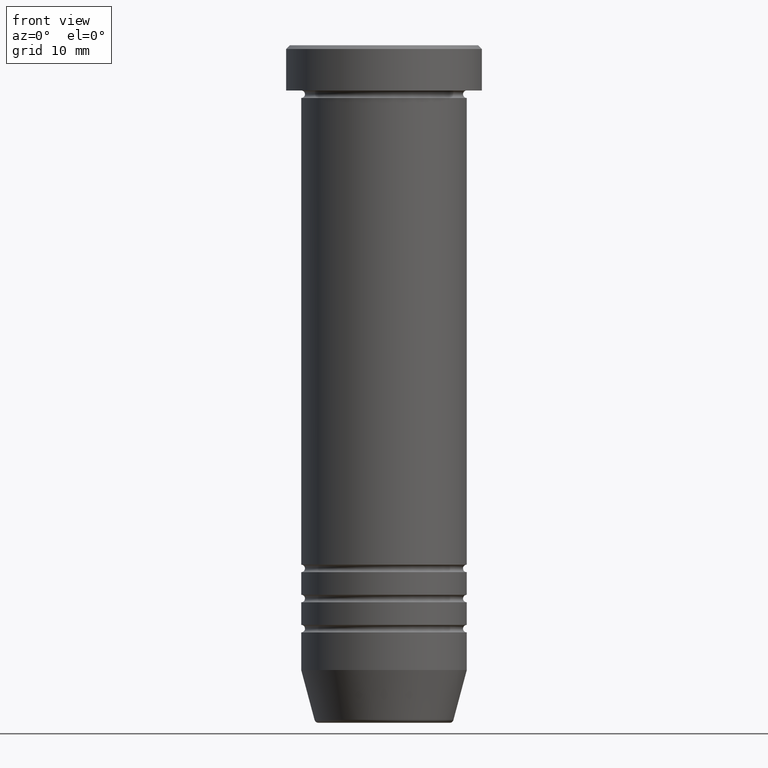
[diagram: clean part render]
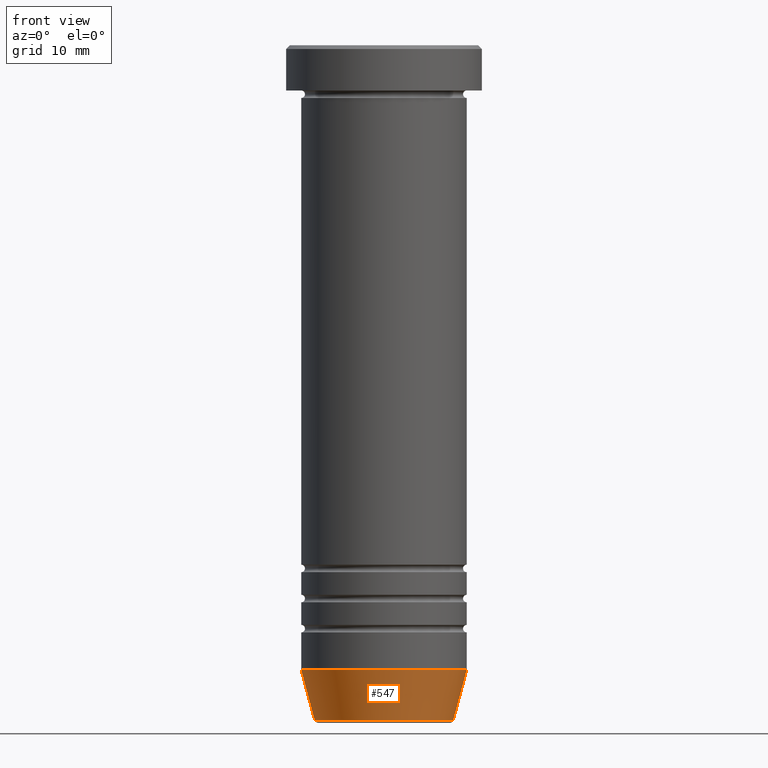
[diagram: same view with one face highlighted and labeled with its STEP entity id]
A machine part, front view. The second image highlights one B-rep face of the part: STEP entity #547.
In plain terms, the highlighted conical surface has half-angle 15 deg.
Its self-contained STEP definition (entity closure, byte-faithful):
#86 = ORIENTED_EDGE ( 'NONE', *, *, #178, .T. ) ;
#130 = EDGE_CURVE ( 'NONE', #850, #1037, #1041, .T. ) ;
#178 = EDGE_CURVE ( 'NONE', #975, #850, #386, .T. ) ;
#197 = DIRECTION ( 'NONE',  ( -0.2588190451025213501, 3.169619151431772337E-17, 0.9659258262890680902 ) ) ;
#199 = DIRECTION ( 'NONE',  ( 1.000000000000000000, 0.000000000000000000, 0.000000000000000000 ) ) ;
#222 = CARTESIAN_POINT ( 'NONE',  ( -11.00000000000000000, 1.347111479062088405E-15, -82.99999999999998579 ) ) ;
#287 = CARTESIAN_POINT ( 'NONE',  ( 0.000000000000000000, 0.000000000000000000, -89.62940952255124216 ) ) ;
#298 = DIRECTION ( 'NONE',  ( -0.000000000000000000, -0.000000000000000000, 1.000000000000000000 ) ) ;
#368 = CARTESIAN_POINT ( 'NONE',  ( 0.000000000000000000, 0.000000000000000000, -82.99999999999998579 ) ) ;
#371 = CARTESIAN_POINT ( 'NONE',  ( 9.124355652982133691, 0.000000000000000000, -90.00000000000000000 ) ) ;
#374 = EDGE_CURVE ( 'NONE', #509, #1037, #536, .T. ) ;
#386 = CIRCLE ( 'NONE', #670, 9.223655072137189492 ) ;
#429 = EDGE_LOOP ( 'NONE', ( #859, #86, #737, #832 ) ) ;
#509 = VERTEX_POINT ( 'NONE', #222 ) ;
#514 = CARTESIAN_POINT ( 'NONE',  ( 9.223655072137189492, 0.000000000000000000, -89.62940952255124216 ) ) ;
#520 = CONICAL_SURFACE ( 'NONE', #621, 9.124355652982133691, 0.2617993877991500740 ) ;
#536 = CIRCLE ( 'NONE', #1030, 11.00000000000000000 ) ;
#540 = DIRECTION ( 'NONE',  ( -0.000000000000000000, -0.000000000000000000, 1.000000000000000000 ) ) ;
#547 = ADVANCED_FACE ( 'NONE', ( #1043 ), #520, .T. ) ;
#571 = VECTOR ( 'NONE', #197, 1000.000000000000000 ) ;
#613 = DIRECTION ( 'NONE',  ( -1.000000000000000000, 0.000000000000000000, 0.000000000000000000 ) ) ;
#621 = AXIS2_PLACEMENT_3D ( 'NONE', #1050, #298, #889 ) ;
#670 = AXIS2_PLACEMENT_3D ( 'NONE', #287, #540, #613 ) ;
#737 = ORIENTED_EDGE ( 'NONE', *, *, #130, .T. ) ;
#800 = CARTESIAN_POINT ( 'NONE',  ( 11.00000000000000000, 0.000000000000000000, -82.99999999999998579 ) ) ;
#832 = ORIENTED_EDGE ( 'NONE', *, *, #374, .F. ) ;
#850 = VERTEX_POINT ( 'NONE', #514 ) ;
#859 = ORIENTED_EDGE ( 'NONE', *, *, #914, .F. ) ;
#889 = DIRECTION ( 'NONE',  ( 1.000000000000000000, 0.000000000000000000, 0.000000000000000000 ) ) ;
#914 = EDGE_CURVE ( 'NONE', #975, #509, #1016, .T. ) ;
#939 = DIRECTION ( 'NONE',  ( -0.000000000000000000, -0.000000000000000000, 1.000000000000000000 ) ) ;
#941 = CARTESIAN_POINT ( 'NONE',  ( -9.124355652982133691, 1.117411294470662806E-15, -90.00000000000000000 ) ) ;
#953 = DIRECTION ( 'NONE',  ( 0.2588190451025213501, 0.000000000000000000, 0.9659258262890680902 ) ) ;
#960 = CARTESIAN_POINT ( 'NONE',  ( -9.223655072137189492, 1.238341722557647202E-15, -89.62940952255124216 ) ) ;
#975 = VERTEX_POINT ( 'NONE', #960 ) ;
#1001 = VECTOR ( 'NONE', #953, 1000.000000000000000 ) ;
#1016 = LINE ( 'NONE', #941, #571 ) ;
#1030 = AXIS2_PLACEMENT_3D ( 'NONE', #368, #939, #199 ) ;
#1037 = VERTEX_POINT ( 'NONE', #800 ) ;
#1041 = LINE ( 'NONE', #371, #1001 ) ;
#1043 = FACE_OUTER_BOUND ( 'NONE', #429, .T. ) ;
#1050 = CARTESIAN_POINT ( 'NONE',  ( 0.000000000000000000, 0.000000000000000000, -90.00000000000000000 ) ) ;